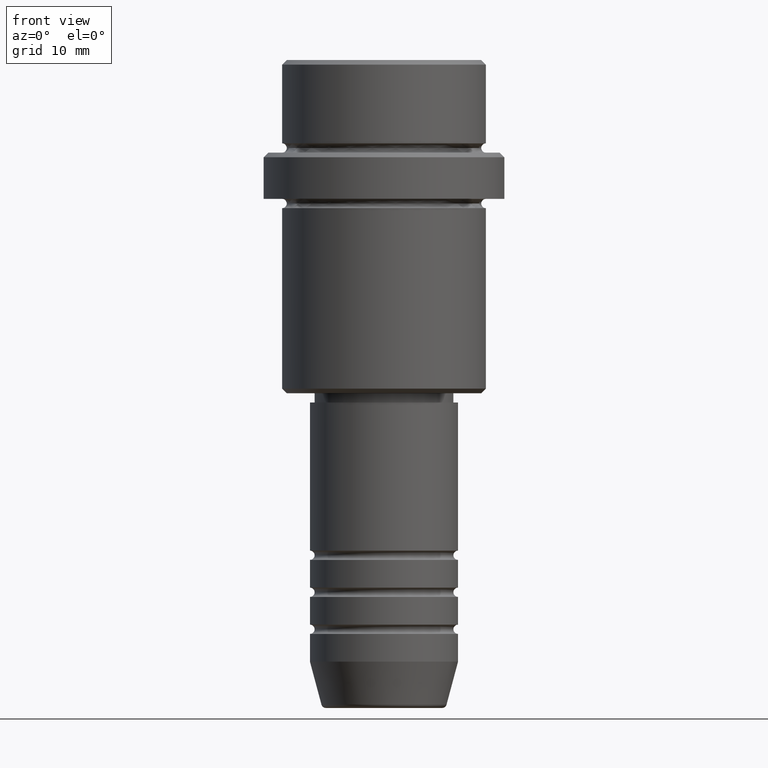
[diagram: clean part render]
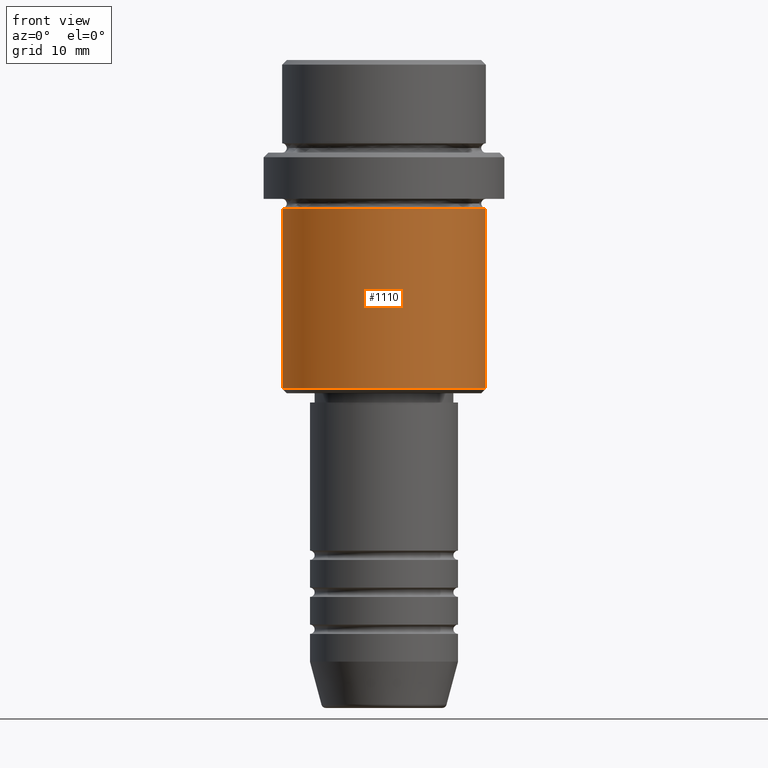
[diagram: same view with one face highlighted and labeled with its STEP entity id]
A machine part, front view. The second image highlights one B-rep face of the part: STEP entity #1110.
In plain terms, the highlighted cylindrical surface (partial cylindrical patch) has radius 11 mm, axis along (-0, -0, 1).
Its self-contained STEP definition (entity closure, byte-faithful):
#7 = CARTESIAN_POINT ( 'NONE',  ( -10.99999999999997158, 1.347111479062085841E-15, -16.00000000000000355 ) ) ;
#55 = CIRCLE ( 'NONE', #854, 10.99999999999998757 ) ;
#166 = LINE ( 'NONE', #1262, #833 ) ;
#171 = CIRCLE ( 'NONE', #767, 10.99999999999997158 ) ;
#186 = DIRECTION ( 'NONE',  ( -0.000000000000000000, -0.000000000000000000, 1.000000000000000000 ) ) ;
#204 = LINE ( 'NONE', #1073, #210 ) ;
#210 = VECTOR ( 'NONE', #876, 1000.000000000000000 ) ;
#290 = CARTESIAN_POINT ( 'NONE',  ( 0.000000000000000000, 0.000000000000000000, 0.000000000000000000 ) ) ;
#307 = DIRECTION ( 'NONE',  ( -0.000000000000000000, -0.000000000000000000, 1.000000000000000000 ) ) ;
#347 = ORIENTED_EDGE ( 'NONE', *, *, #1380, .F. ) ;
#422 = ORIENTED_EDGE ( 'NONE', *, *, #835, .T. ) ;
#449 = ORIENTED_EDGE ( 'NONE', *, *, #456, .F. ) ;
#456 = EDGE_CURVE ( 'NONE', #737, #983, #204, .T. ) ;
#496 = CYLINDRICAL_SURFACE ( 'NONE', #1099, 10.99999999999998757 ) ;
#512 = CARTESIAN_POINT ( 'NONE',  ( -10.99999999999998757, 1.347111479062086827E-15, -35.50000000000002132 ) ) ;
#514 = EDGE_LOOP ( 'NONE', ( #449, #422, #967, #347 ) ) ;
#535 = CARTESIAN_POINT ( 'NONE',  ( 0.000000000000000000, 0.000000000000000000, -35.50000000000002132 ) ) ;
#737 = VERTEX_POINT ( 'NONE', #512 ) ;
#767 = AXIS2_PLACEMENT_3D ( 'NONE', #1003, #1037, #920 ) ;
#833 = VECTOR ( 'NONE', #186, 1000.000000000000000 ) ;
#835 = EDGE_CURVE ( 'NONE', #737, #948, #55, .T. ) ;
#838 = FACE_OUTER_BOUND ( 'NONE', #514, .T. ) ;
#854 = AXIS2_PLACEMENT_3D ( 'NONE', #535, #307, #1401 ) ;
#876 = DIRECTION ( 'NONE',  ( -0.000000000000000000, -0.000000000000000000, 1.000000000000000000 ) ) ;
#887 = CARTESIAN_POINT ( 'NONE',  ( 10.99999999999997158, 0.000000000000000000, -16.00000000000000355 ) ) ;
#920 = DIRECTION ( 'NONE',  ( 1.000000000000000000, 0.000000000000000000, 0.000000000000000000 ) ) ;
#929 = DIRECTION ( 'NONE',  ( -0.000000000000000000, -0.000000000000000000, 1.000000000000000000 ) ) ;
#948 = VERTEX_POINT ( 'NONE', #1119 ) ;
#967 = ORIENTED_EDGE ( 'NONE', *, *, #1068, .T. ) ;
#976 = VERTEX_POINT ( 'NONE', #887 ) ;
#983 = VERTEX_POINT ( 'NONE', #7 ) ;
#1003 = CARTESIAN_POINT ( 'NONE',  ( 0.000000000000000000, 0.000000000000000000, -16.00000000000000355 ) ) ;
#1037 = DIRECTION ( 'NONE',  ( -0.000000000000000000, -0.000000000000000000, 1.000000000000000000 ) ) ;
#1068 = EDGE_CURVE ( 'NONE', #948, #976, #166, .T. ) ;
#1073 = CARTESIAN_POINT ( 'NONE',  ( -10.99999999999998757, 1.347111479062086827E-15, 0.000000000000000000 ) ) ;
#1099 = AXIS2_PLACEMENT_3D ( 'NONE', #290, #929, #1266 ) ;
#1110 = ADVANCED_FACE ( 'NONE', ( #838 ), #496, .T. ) ;
#1119 = CARTESIAN_POINT ( 'NONE',  ( 10.99999999999998757, 0.000000000000000000, -35.50000000000002132 ) ) ;
#1262 = CARTESIAN_POINT ( 'NONE',  ( 10.99999999999998757, 0.000000000000000000, 0.000000000000000000 ) ) ;
#1266 = DIRECTION ( 'NONE',  ( 1.000000000000000000, 0.000000000000000000, 0.000000000000000000 ) ) ;
#1380 = EDGE_CURVE ( 'NONE', #983, #976, #171, .T. ) ;
#1401 = DIRECTION ( 'NONE',  ( -1.000000000000000000, 0.000000000000000000, 0.000000000000000000 ) ) ;